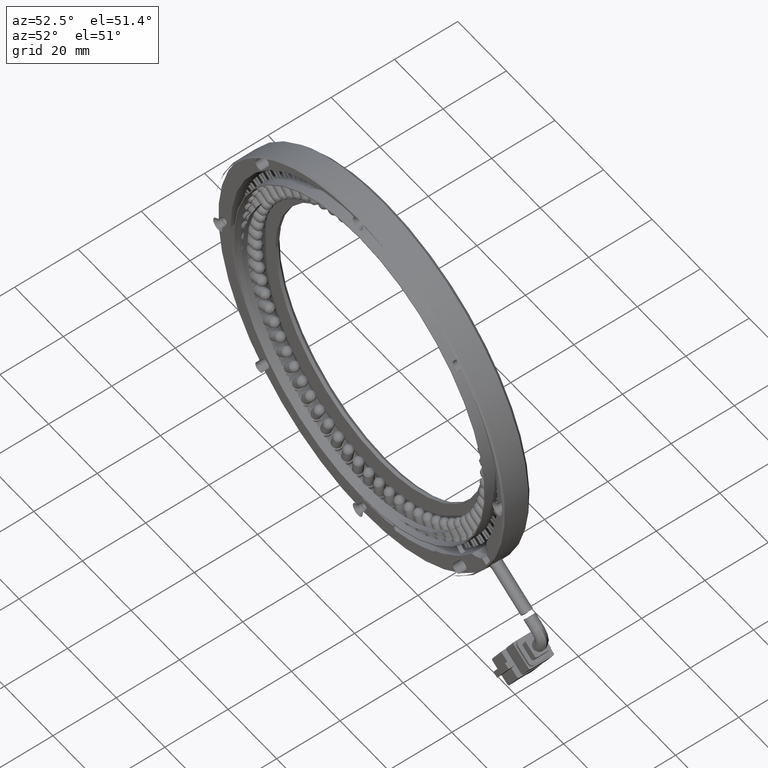
[diagram: clean part render]
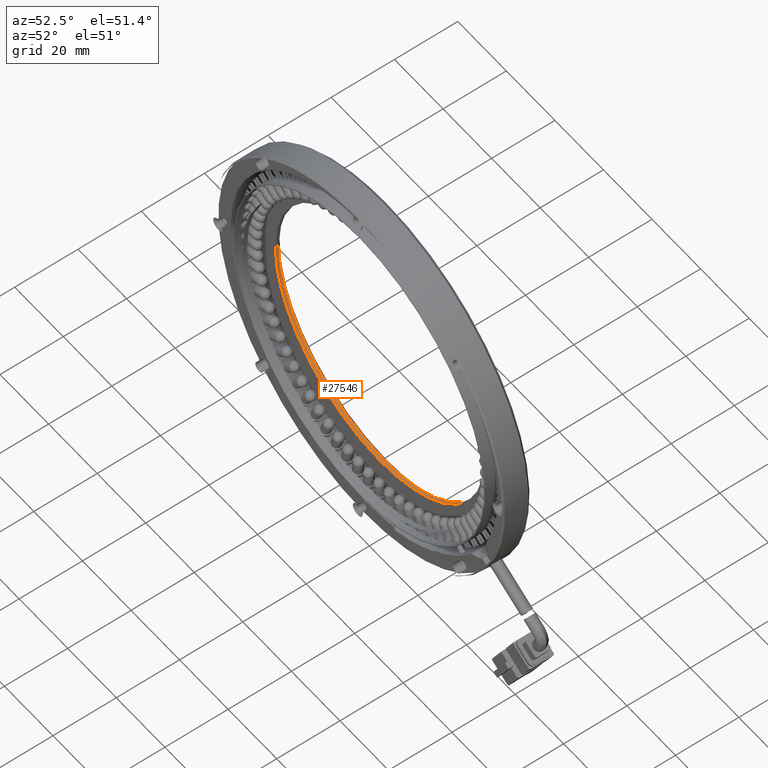
[diagram: same view with one face highlighted and labeled with its STEP entity id]
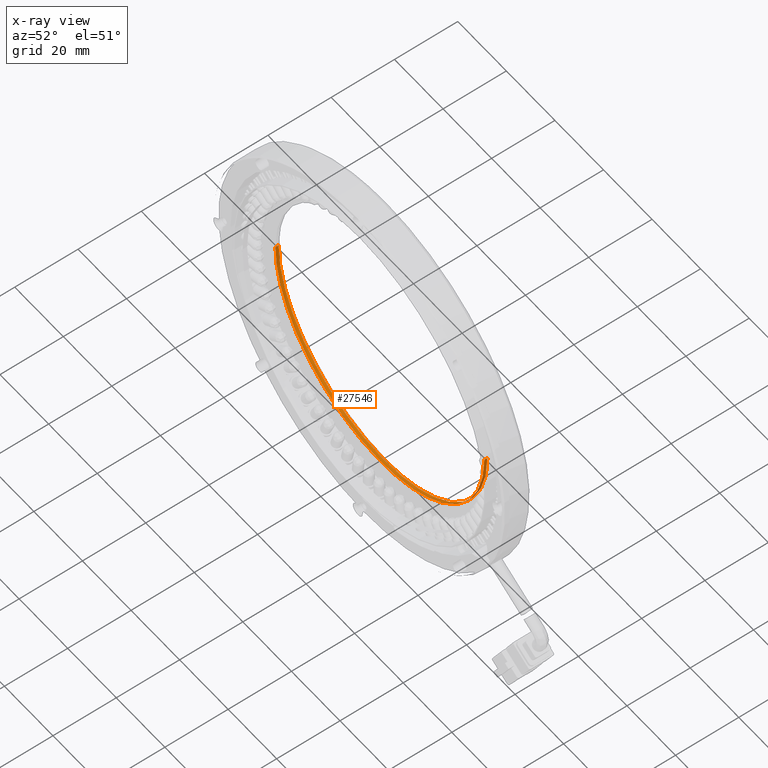
[diagram: x-ray of the same camera — body ghosted, the highlighted face saturated]
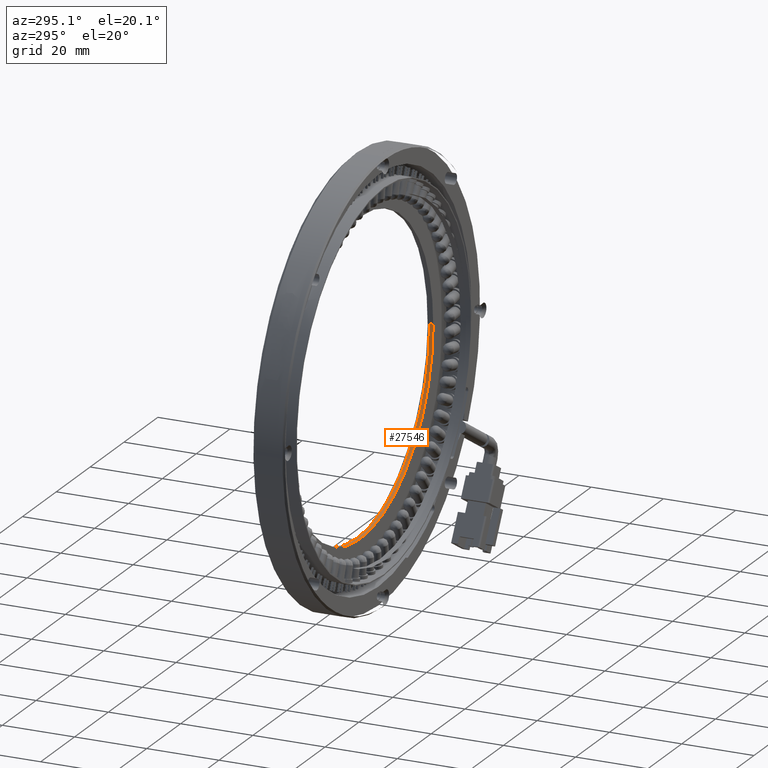
[diagram: same view with one face highlighted and labeled with its STEP entity id]
A machine part, auxiliary view. The second image highlights one B-rep face of the part: STEP entity #27546.
The next image is the same camera in x-ray: the body ghosted, the highlighted face saturated — about 0% of this face is hidden behind the body in this view.
A second angle (auxiliary view) of the same face is appended — the face is thin or edge-on in the first view.
In plain terms, the highlighted cylindrical surface (partial cylindrical patch) has radius 43 mm, axis along (-0, 1, 0).
Its self-contained STEP definition (entity closure, byte-faithful):
#681 = VECTOR ( 'NONE', #45774, 1000.000000000000000 ) ;
#1140 = EDGE_CURVE ( 'NONE', #41179, #23024, #41709, .T. ) ;
#2287 = CARTESIAN_POINT ( 'NONE',  ( 42.60245881226100600, 26.01889671362000600, -40.80440299672390800 ) ) ;
#2504 = CARTESIAN_POINT ( 'NONE',  ( 13.45624510954999700, 26.01889671361625000, 4.419888705890230900E-012 ) ) ;
#3397 = CARTESIAN_POINT ( 'NONE',  ( 95.10551044548725500, 26.01889671361999800, -19.05692854644166800 ) ) ;
#6399 = ORIENTED_EDGE ( 'NONE', *, *, #11011, .T. ) ;
#7254 = CARTESIAN_POINT ( 'NONE',  ( 34.90811131116759500, 26.01889671362000600, -37.31761820507022500 ) ) ;
#8395 = CARTESIAN_POINT ( 'NONE',  ( 90.64505332260090100, 26.01889671361999800, -26.23085262826120400 ) ) ;
#9072 = CARTESIAN_POINT ( 'NONE',  ( 99.45624510954998200, 26.01889671361250200, 5.265981236333618500E-015 ) ) ;
#10738 = VERTEX_POINT ( 'NONE', #49547 ) ;
#11011 = EDGE_CURVE ( 'NONE', #24562, #23024, #34390, .T. ) ;
#11777 = EDGE_LOOP ( 'NONE', ( #36081, #46572, #27476, #6399, #59744, #13373 ) ) ;
#12294 = CARTESIAN_POINT ( 'NONE',  ( 28.04184650688262800, 26.01889671361999800, -32.39673827308469400 ) ) ;
#13373 = ORIENTED_EDGE ( 'NONE', *, *, #62609, .F. ) ;
#13396 = CARTESIAN_POINT ( 'NONE',  ( 84.87071584079183100, 26.01889671361999500, -32.39676338710393100 ) ) ;
#13510 = CARTESIAN_POINT ( 'NONE',  ( 56.45624510954999000, 26.01889671361249900, 0.0000000000000000000 ) ) ;
#16495 = CARTESIAN_POINT ( 'NONE',  ( 13.45624510954999700, 26.01889671361625000, 4.419888705890230900E-012 ) ) ;
#16836 = AXIS2_PLACEMENT_3D ( 'NONE', #51874, #22242, #56832 ) ;
#17268 = CARTESIAN_POINT ( 'NONE',  ( 22.26751535937372900, 26.01889671361999800, -26.23084039778298400 ) ) ;
#18156 = CARTESIAN_POINT ( 'NONE',  ( 99.45627785260347800, 26.01889671362000200, -2.815905964857552800 ) ) ;
#18384 = CARTESIAN_POINT ( 'NONE',  ( 78.00444475152134800, 26.01889671362000600, -37.31765690779698700 ) ) ;
#18470 = AXIS2_PLACEMENT_3D ( 'NONE', #56397, #26720, #61355 ) ;
#19026 = DIRECTION ( 'NONE',  ( -4.034240641806528500E-017, 1.000000000000000000, 4.882529266801065400E-033 ) ) ;
#20945 = AXIS2_PLACEMENT_3D ( 'NONE', #13510, #62782, #38132 ) ;
#21520 = VERTEX_POINT ( 'NONE', #63633 ) ;
#22204 = CARTESIAN_POINT ( 'NONE',  ( 17.80706881214146600, 26.01889671362000200, -19.05696382475130700 ) ) ;
#22242 = DIRECTION ( 'NONE',  ( 0.0000000000000000000, 1.000000000000000000, 0.0000000000000000000 ) ) ;
#22305 = VERTEX_POINT ( 'NONE', #43381 ) ;
#23024 = VERTEX_POINT ( 'NONE', #31436 ) ;
#23093 = CARTESIAN_POINT ( 'NONE',  ( 99.45624510954998200, 26.01889671361625400, -1.332315192935266000E-011 ) ) ;
#23290 = CARTESIAN_POINT ( 'NONE',  ( 70.31008734561673600, 26.01889671361999500, -40.80445070827566700 ) ) ;
#24562 = VERTEX_POINT ( 'NONE', #32081 ) ;
#26720 = DIRECTION ( 'NONE',  ( 0.0000000000000000000, 1.000000000000000000, 0.0000000000000000000 ) ) ;
#26928 = CARTESIAN_POINT ( 'NONE',  ( 53.63997323333657600, 26.01889671362000200, -42.99999999999998600 ) ) ;
#27126 = CARTESIAN_POINT ( 'NONE',  ( 14.83187268823273900, 26.01889671362000200, -11.15070935943101700 ) ) ;
#27476 = ORIENTED_EDGE ( 'NONE', *, *, #30792, .T. ) ;
#27546 = ADVANCED_FACE ( 'NONE', ( #37168 ), #61943, .F. ) ;
#28032 = CARTESIAN_POINT ( 'NONE',  ( 99.17932635761260900, 26.01889671362000200, -5.627110305215330400 ) ) ;
#28252 = CARTESIAN_POINT ( 'NONE',  ( 62.08336946793011200, 26.01889671362000200, -42.72315189787240500 ) ) ;
#30787 = B_SPLINE_CURVE_WITH_KNOTS ( 'NONE', 3,
 ( #51621, #26928, #61554, #31938, #2287, #36898, #7254, #41886, #12294, #46868, #17268, #51834, #22204, #56800, #27126, #61763, #32150, #2504 ),
 .UNSPECIFIED., .F., .F.,
 ( 4, 2, 2, 2, 2, 2, 2, 2, 4 ),
 ( 0.0000000000000000000, 0.06250000000000004200, 0.1250000000000000800, 0.1875000000000001100, 0.2500000000000001100, 0.3125000000000001100, 0.3750000000000000600, 0.4375000000000000600, 0.5000000000000000000 ),
 .UNSPECIFIED. ) ;
#30792 = EDGE_CURVE ( 'NONE', #21520, #24562, #34179, .T. ) ;
#31436 = CARTESIAN_POINT ( 'NONE',  ( 13.45624510954998600, 27.01889671361750400, 2.441264633412757400E-033 ) ) ;
#31938 = CARTESIAN_POINT ( 'NONE',  ( 45.30555494113792700, 26.01889671362000600, -41.62444634665909100 ) ) ;
#32081 = CARTESIAN_POINT ( 'NONE',  ( 56.45624510954999700, 27.01889671361750400, -43.00000000000000000 ) ) ;
#32150 = CARTESIAN_POINT ( 'NONE',  ( 13.45627785260351100, 26.01889671362000900, -2.815905964437537300 ) ) ;
#32159 = EDGE_CURVE ( 'NONE', #10738, #21520, #52214, .T. ) ;
#33062 = CARTESIAN_POINT ( 'NONE',  ( 97.26061956957231300, 26.01889671362000200, -13.85384663698271800 ) ) ;
#33269 = CARTESIAN_POINT ( 'NONE',  ( 56.45624510954046100, 26.01889671361550400, -43.00000000000000000 ) ) ;
#34179 = CIRCLE ( 'NONE', #18470, 43.00000000000000000 ) ;
#34390 = CIRCLE ( 'NONE', #16836, 43.00000000000000000 ) ;
#36081 = ORIENTED_EDGE ( 'NONE', *, *, #47773, .F. ) ;
#36898 = CARTESIAN_POINT ( 'NONE',  ( 37.39925622343918800, 26.01889671362001300, -38.64923679924590500 ) ) ;
#37168 = FACE_OUTER_BOUND ( 'NONE', #11777, .T. ) ;
#38011 = CARTESIAN_POINT ( 'NONE',  ( 93.77382355450130500, 26.01889671362000600, -21.54818741144948600 ) ) ;
#38132 = DIRECTION ( 'NONE',  ( -1.000000000000000000, -8.068481283613055800E-017, 0.0000000000000000000 ) ) ;
#39025 = VECTOR ( 'NONE', #19026, 1000.000000000000000 ) ;
#41179 = VERTEX_POINT ( 'NONE', #16495 ) ;
#41709 = LINE ( 'NONE', #47930, #681 ) ;
#41886 = CARTESIAN_POINT ( 'NONE',  ( 30.22533886824385600, 26.01889671362000600, -34.18876845294680300 ) ) ;
#43005 = CARTESIAN_POINT ( 'NONE',  ( 88.85295756032925900, 26.01889671362000600, -28.41441979496113000 ) ) ;
#43381 = CARTESIAN_POINT ( 'NONE',  ( 56.45624510954046100, 26.01889671361550400, -43.00000000000000000 ) ) ;
#45774 = DIRECTION ( 'NONE',  ( -4.034240641806528500E-017, 1.000000000000000000, 4.882529266801065400E-033 ) ) ;
#46572 = ORIENTED_EDGE ( 'NONE', *, *, #32159, .T. ) ;
#46868 = CARTESIAN_POINT ( 'NONE',  ( 24.05946053017114000, 26.01889671362000600, -28.41444490895526400 ) ) ;
#47773 = EDGE_CURVE ( 'NONE', #10738, #22305, #48098, .T. ) ;
#47930 = CARTESIAN_POINT ( 'NONE',  ( 13.45624510954999300, 26.01889671361249500, 0.0000000000000000000 ) ) ;
#47971 = CARTESIAN_POINT ( 'NONE',  ( 82.68708550723768300, 26.01889671362000200, -34.18872975023978000 ) ) ;
#48098 = B_SPLINE_CURVE_WITH_KNOTS ( 'NONE', 3,
 ( #23093, #18156, #28032, #62665, #33062, #3397, #38011, #8395, #43005, #13396, #47971, #18384, #52963, #23290, #57938, #28252, #62885, #33269 ),
 .UNSPECIFIED., .F., .F.,
 ( 4, 2, 2, 2, 2, 2, 2, 2, 4 ),
 ( 0.5000000000000000000, 0.5625000000000000000, 0.6250000000000000000, 0.6875000000000000000, 0.7500000000000000000, 0.8125000000000001100, 0.8750000000000001100, 0.9375000000000002200, 1.000000000000000000 ),
 .UNSPECIFIED. ) ;
#49547 = CARTESIAN_POINT ( 'NONE',  ( 99.45624510954998200, 26.01889671361625400, -1.332315192935266000E-011 ) ) ;
#51621 = CARTESIAN_POINT ( 'NONE',  ( 56.45624510954046100, 26.01889671361550400, -43.00000000000000000 ) ) ;
#51834 = CARTESIAN_POINT ( 'NONE',  ( 19.13858820170432700, 26.01889671361999800, -21.54819964189822900 ) ) ;
#51874 = CARTESIAN_POINT ( 'NONE',  ( 56.45624510954999000, 27.01889671361750400, 0.0000000000000000000 ) ) ;
#52214 = LINE ( 'NONE', #9072, #39025 ) ;
#52963 = CARTESIAN_POINT ( 'NONE',  ( 75.51317805685018000, 26.01889671362000200, -38.64918908770774000 ) ) ;
#56397 = CARTESIAN_POINT ( 'NONE',  ( 56.45624510954999000, 27.01889671361750400, 0.0000000000000000000 ) ) ;
#56800 = CARTESIAN_POINT ( 'NONE',  ( 15.65178161098530100, 26.01889671361999500, -13.85381135864025000 ) ) ;
#56832 = DIRECTION ( 'NONE',  ( 0.0000000000000000000, 0.0000000000000000000, -1.000000000000000000 ) ) ;
#57938 = CARTESIAN_POINT ( 'NONE',  ( 67.60688844452317900, 26.01889671362000200, -41.62438221681211600 ) ) ;
#59744 = ORIENTED_EDGE ( 'NONE', *, *, #1140, .F. ) ;
#61355 = DIRECTION ( 'NONE',  ( 0.0000000000000000000, 0.0000000000000000000, -1.000000000000000000 ) ) ;
#61554 = CARTESIAN_POINT ( 'NONE',  ( 50.82916758457395900, 26.01889671361999800, -42.72308776801849500 ) ) ;
#61763 = CARTESIAN_POINT ( 'NONE',  ( 13.73308341618790600, 26.01889671362000600, -5.627058333948421700 ) ) ;
#61943 = CYLINDRICAL_SURFACE ( 'NONE', #20945, 43.00000000000000000 ) ;
#62609 = EDGE_CURVE ( 'NONE', #22305, #41179, #30787, .T. ) ;
#62665 = CARTESIAN_POINT ( 'NONE',  ( 98.08069797615974000, 26.01889671362000200, -11.15065738819889400 ) ) ;
#62782 = DIRECTION ( 'NONE',  ( -4.034240641806528500E-017, 1.000000000000000000, 4.882529266801065400E-033 ) ) ;
#62885 = CARTESIAN_POINT ( 'NONE',  ( 59.27321866703430700, 26.01889671362000600, -43.00000000000000000 ) ) ;
#63633 = CARTESIAN_POINT ( 'NONE',  ( 99.45624510954998200, 27.01889671361750400, 5.265981236333620000E-015 ) ) ;